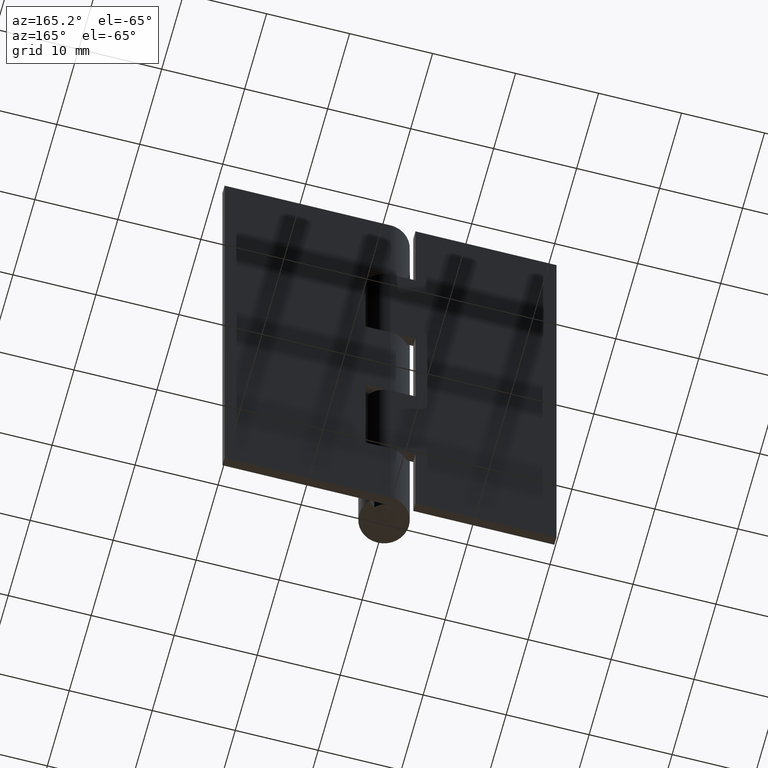
[diagram: clean part render]
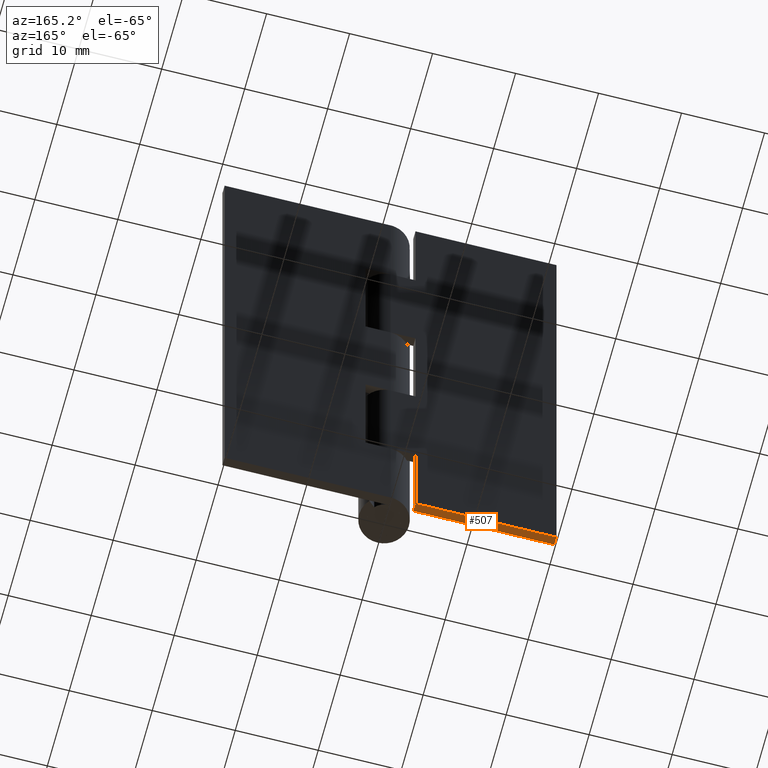
[diagram: same view with one face highlighted and labeled with its STEP entity id]
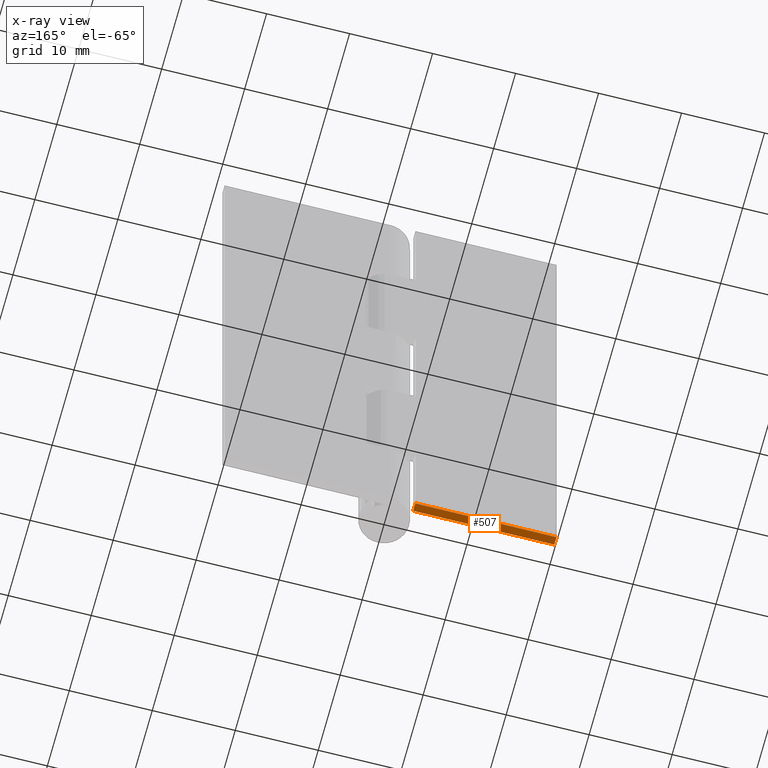
[diagram: x-ray of the same camera — body ghosted, the highlighted face saturated]
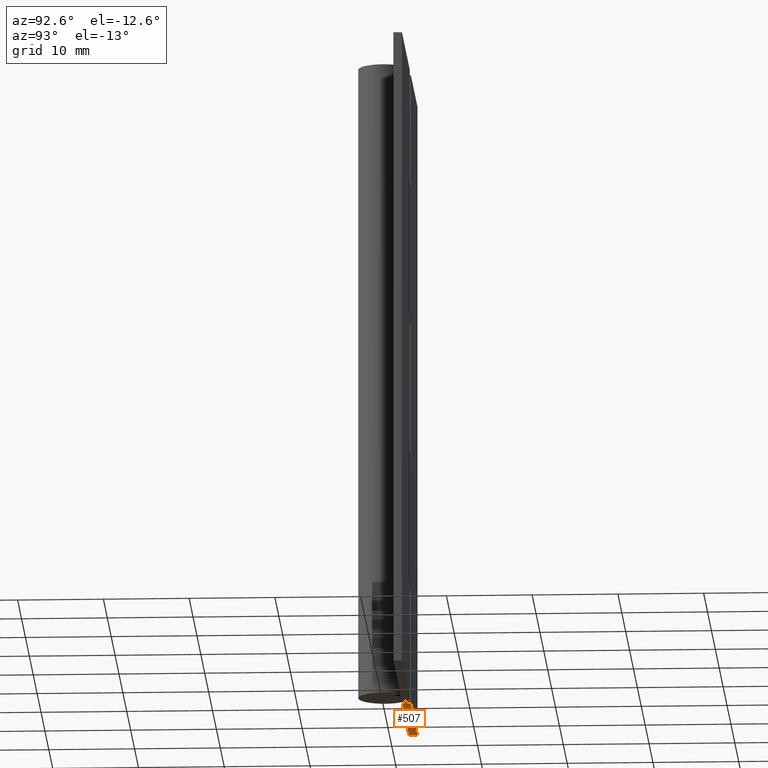
[diagram: same view with one face highlighted and labeled with its STEP entity id]
A machine part, auxiliary view. The second image highlights one B-rep face of the part: STEP entity #507.
The next image is the same camera in x-ray: the body ghosted, the highlighted face saturated — about 0% of this face is hidden behind the body in this view.
A second angle (auxiliary view) of the same face is appended — the face is thin or edge-on in the first view.
In plain terms, the highlighted face is a freeform B-spline surface patch.
Its self-contained STEP definition (entity closure, byte-faithful):
#303=CARTESIAN_POINT('',(-3.0,2.0,0.0));
#304=VERTEX_POINT('',#303);
#305=CARTESIAN_POINT('',(-3.0,3.0,0.0));
#306=VERTEX_POINT('',#305);
#307=CARTESIAN_POINT('',(-3.0,2.0,0.0));
#308=CARTESIAN_POINT('',(-3.0,3.0,0.0));
#309=QUASI_UNIFORM_CURVE('',1,(#307,#308),.UNSPECIFIED.,.F.,.U.);
#310=EDGE_CURVE('',#304,#306,#309,.T.);
#437=CARTESIAN_POINT('',(-20.0,2.0,0.0));
#438=VERTEX_POINT('',#437);
#439=CARTESIAN_POINT('',(-20.0,3.0,0.0));
#440=VERTEX_POINT('',#439);
#441=CARTESIAN_POINT('',(-20.0,2.0,0.0));
#442=CARTESIAN_POINT('',(-20.0,3.0,0.0));
#443=QUASI_UNIFORM_CURVE('',1,(#441,#442),.UNSPECIFIED.,.F.,.U.);
#444=EDGE_CURVE('',#438,#440,#443,.T.);
#488=CARTESIAN_POINT('',(-20.849149967050700,1.950050001938194,0.0));
#489=CARTESIAN_POINT('',(-2.150849576973767,1.950050001938194,0.0));
#490=CARTESIAN_POINT('',(-20.849149967050700,3.049950024883897,0.0));
#491=CARTESIAN_POINT('',(-2.150849576973767,3.049950024883897,0.0));
#492=B_SPLINE_SURFACE_WITH_KNOTS('',1,1,((#488,#490),(#489,#491)),.UNSPECIFIED.,.F.,.F.,.U.,(2,2),(2,2),(0.0,18.698300390076930),(0.041708334948495,0.958291687403247),.UNSPECIFIED.);
#493=CARTESIAN_POINT('',(-20.0,3.0,0.0));
#494=CARTESIAN_POINT('',(-3.0,3.0,0.0));
#495=QUASI_UNIFORM_CURVE('',1,(#493,#494),.UNSPECIFIED.,.F.,.U.);
#496=EDGE_CURVE('',#440,#306,#495,.T.);
#497=ORIENTED_EDGE('',*,*,#496,.T.);
#498=ORIENTED_EDGE('',*,*,#310,.F.);
#499=CARTESIAN_POINT('',(-3.0,2.0,0.0));
#500=CARTESIAN_POINT('',(-20.0,2.0,0.0));
#501=QUASI_UNIFORM_CURVE('',1,(#499,#500),.UNSPECIFIED.,.F.,.U.);
#502=EDGE_CURVE('',#304,#438,#501,.T.);
#503=ORIENTED_EDGE('',*,*,#502,.T.);
#504=ORIENTED_EDGE('',*,*,#444,.T.);
#505=EDGE_LOOP('',(#497,#498,#503,#504));
#506=FACE_OUTER_BOUND('',#505,.T.);
#507=ADVANCED_FACE('',(#506),#492,.F.);